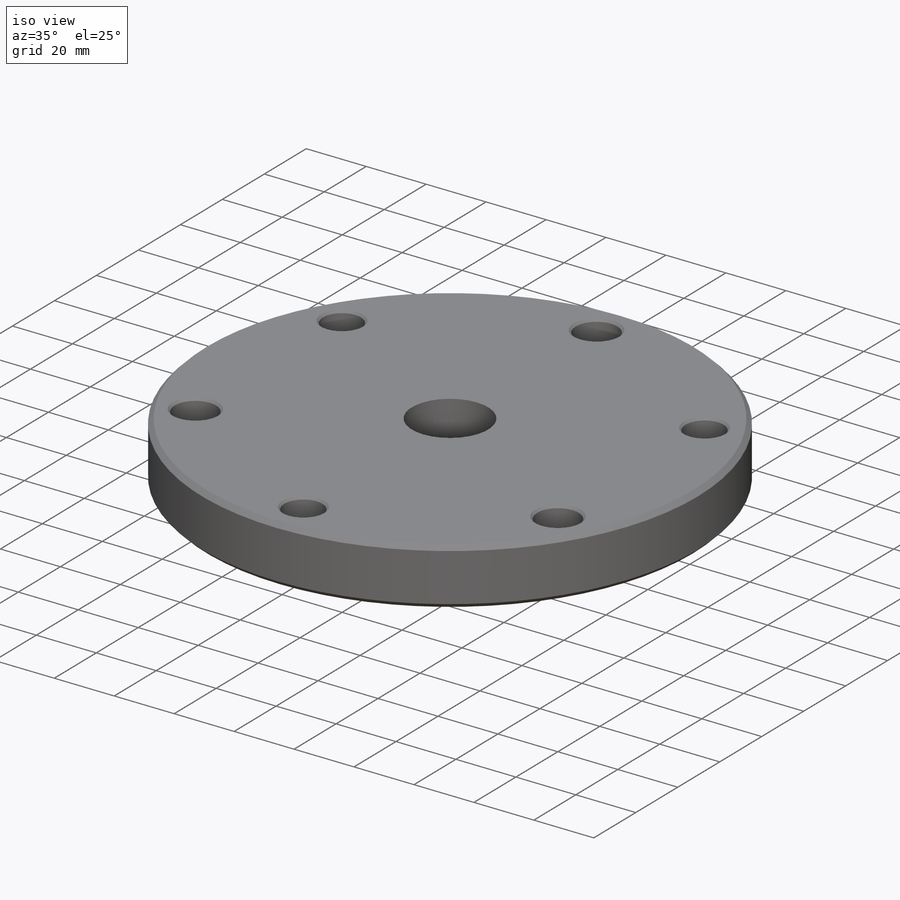
[diagram: iso view]
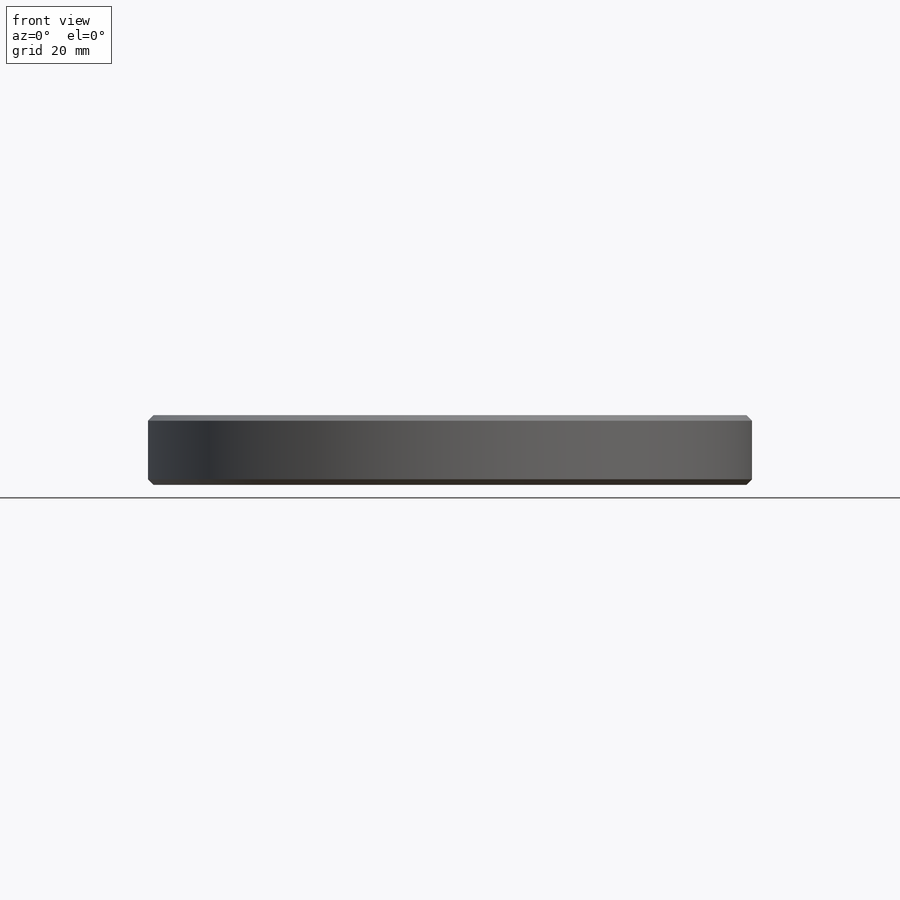
[diagram: front view]
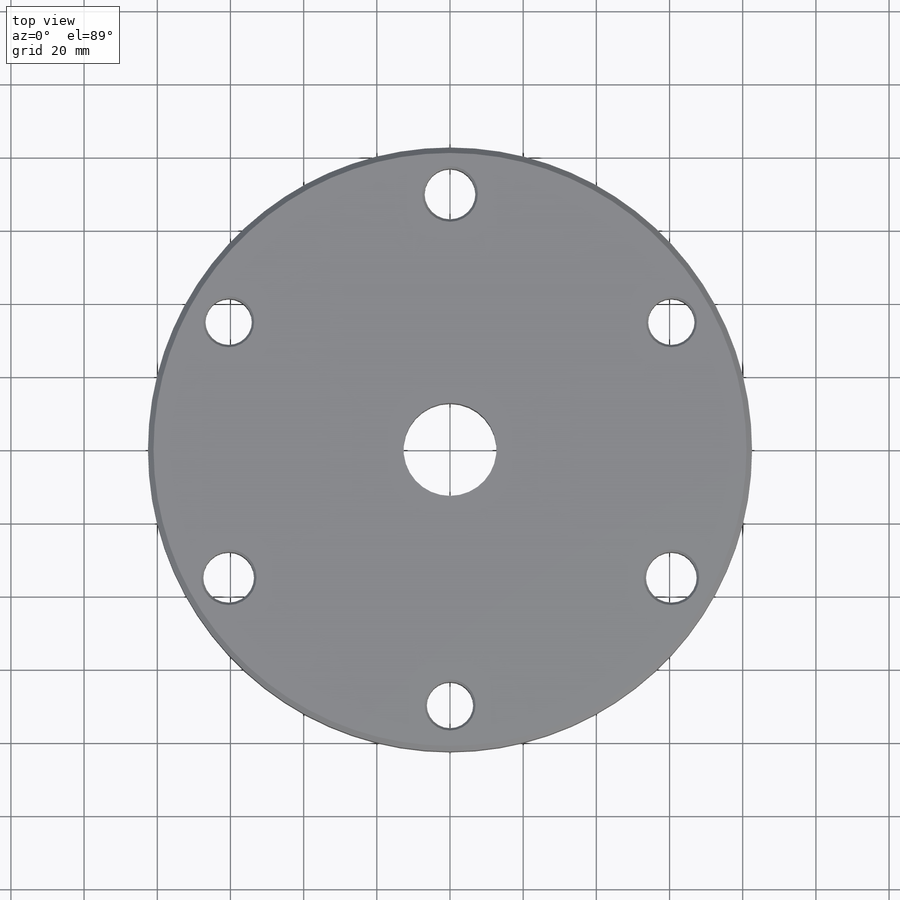
[diagram: top view]
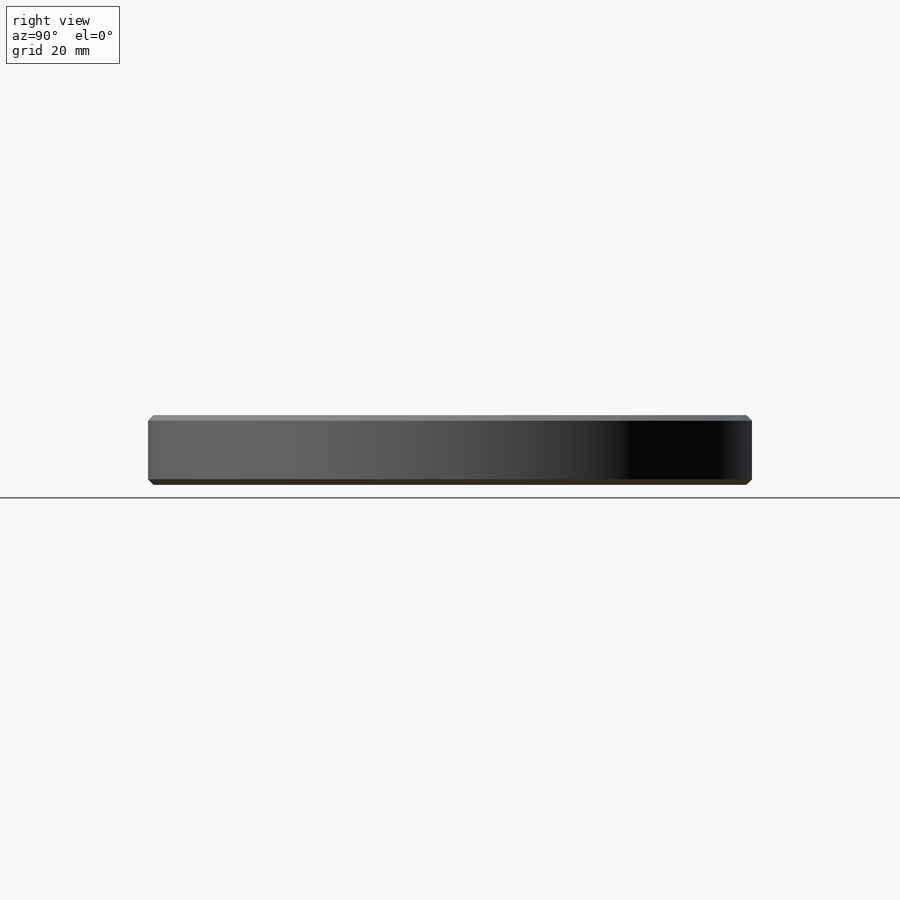
[diagram: right view]
SOLIDWORKS PART (.sldprt)
format: sldprt  version: not decoded by parser v0  size: 775,168 bytes
history: native  units: mm
features: sketch x14, hole x5, chamfer x5, extrude x2, cut_extrude x2, material x1, fillet x1 + 1 further entry (+13 scaffold rows collapsed)
feature tree (44):
  scaffold x13  (default folders/planes/origin — collapsed)
  material  "AISI 1020 Steel, Cold Rolled"
  "Origin"  ID=-1
  sketch  "Sketch1"  dims[D1=165.1mm]
  extrude  "Extrude1"  Depth=19.05mm
  sketch  "Sketch2"  dims[D1=114.3mm]
  extrude  "Extrude2"  Depth=38.1mm
  hole  "1/4 Clearance Hole1"  Diameter=7.14248mm Depth=19.05mm
  sketch  "Sketch4"  dims[c1.D2=139.7mm c1.D1=~66.540845mm c2.D1=120.0deg]
  sketch  "Sketch3"  dims[hole-wizard template sketch: 47 standard entries collapsed; hole parameters kept: c15.Thru Hole Depth=19.05mm c15.Near C'Sink Dia.=8.128mm c15.D4=~3.666174mm c15.Near C'Sink Angle=82.0deg c15.Far C'Sink Dia.=8.128mm c15.D6=~9.919017mm c15.Far C'Sink Angle=82.0deg]
  sketch  "Sketch5"  dims[D1=82.55mm]
  cut_extrude  "Cut-Extrude1"  Depth=19.05mm
  chamfer  "Chamfer1"  Distance=1.27mm Angle=45deg
  hole  "1 (1) Diameter Hole1"  Diameter=25.4mm Depth=19.05mm
  sketch  "Sketch7"
  sketch  "Sketch6"  dims[hole-wizard template sketch: 60 standard entries collapsed; hole parameters kept: c18.Thru Hole Depth=19.05mm]
  sketch  "Sketch9"  dims[D1=19.05mm]
  cut_extrude  "Cut-Extrude3"  Depth=21.59mm
  chamfer  "Chamfer3"  Distance=1.27mm Angle=45deg
  fillet  "Fillet1"  Radius=2.032mm
  chamfer  "Chamfer4"  Distance=12.7mm Angle=45deg
  chamfer  "Chamfer5"  Distance=6.35mm Angle=30deg
  hole  "1 (1) Diameter Hole2"  Diameter=25.4mm Depth=19.05mm
  sketch  "Sketch11"
  sketch  "Sketch10"  dims[hole-wizard template sketch: 60 standard entries collapsed; hole parameters kept: c18.Thru Hole Depth=19.05mm]
  hole  "1/2-20 Tapped Hole1"  Diameter=12.7mm Depth=19.05mm
  sketch  "Sketch13"  dims[c1.D1=139.7mm c1.D2=~62.099698mm c2.D2=120.0deg]
  sketch  "Sketch12"  dims[hole-wizard template sketch: 47 standard entries collapsed; hole parameters kept: c15.Thru Tap Drill Depth=19.05mm c15.Near C'Sink Dia.=13.97mm c15.D4=~3.666174mm c15.Near C'Sink Angle=82.0deg c15.Far C'Sink Dia.=13.97mm c15.D6=~9.919017mm c15.Far C'Sink Angle=82.0deg]
  hole  "1/2 Clearance Hole1"  Diameter=13.89126mm Depth=19.05mm
  sketch  "Sketch15"  dims[c1.D1=139.7mm c1.D2=69.85mm c2.D2=120.0deg]
  sketch  "Sketch14"  dims[hole-wizard template sketch: 47 standard entries collapsed; hole parameters kept: c15.Thru Hole Depth=19.05mm c15.Near C'Sink Dia.=15.24mm c15.D4=~3.666174mm c15.Near C'Sink Angle=82.0deg c15.Far C'Sink Dia.=15.24mm c15.D6=~9.919017mm c15.Far C'Sink Angle=82.0deg]
  chamfer  "Chamfer6"  Distance=1.524mm Angle=45deg
decode coverage: 27 of 29 modeling features carry decoded parameters; 1 rows unclassified (native names shown)
note: ~ marks probable driven/reference dimensions
summary: Diameter pulled from absorbed wizard sketch
note: suppression state not decoded; provenance and decode notes live in map.json
